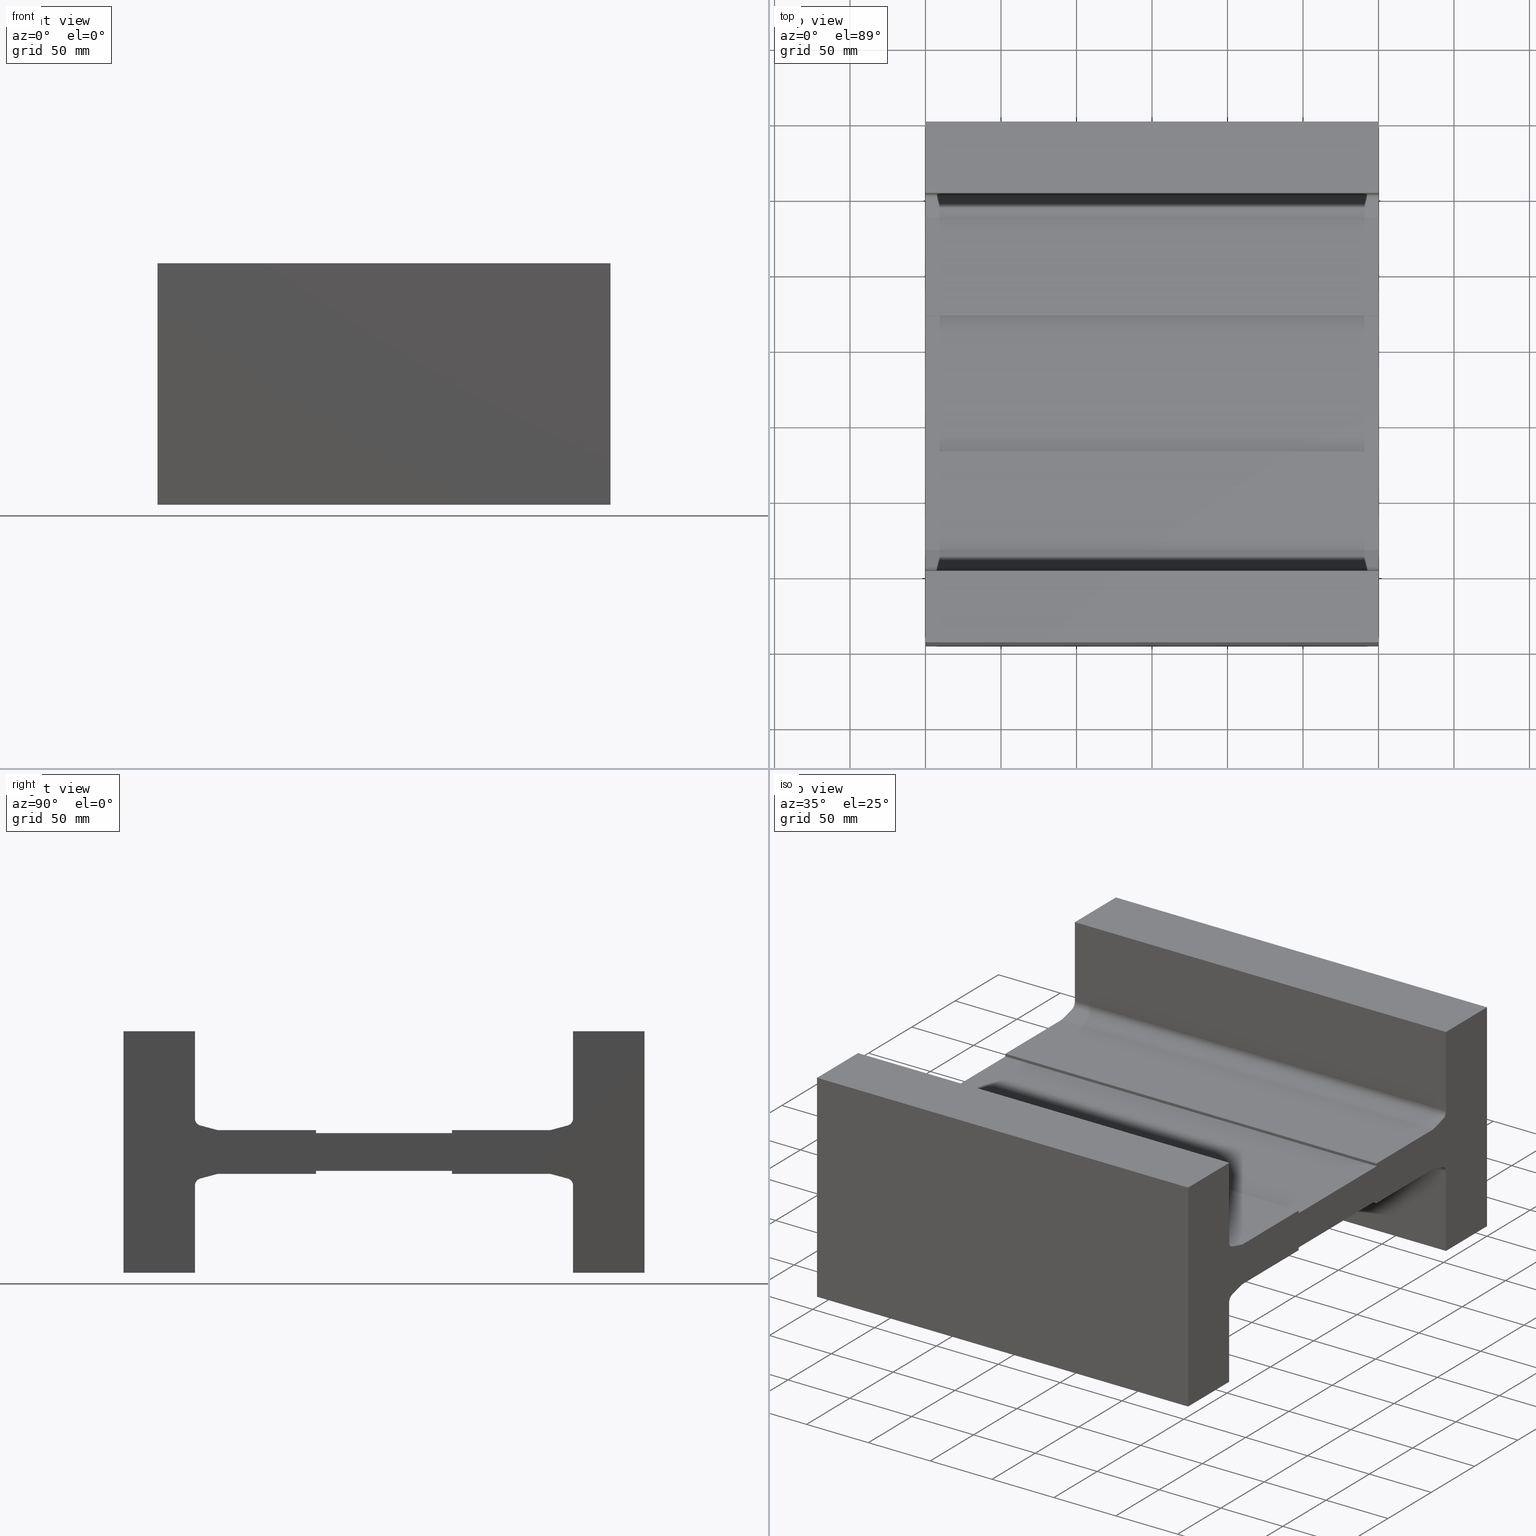
[diagram: canonical four-view strip — front | top / right | iso, engineering-drawing reading convention]
A machine part, canonical four-view strip (front | top / right | iso — engineering-drawing reading convention). The complete STEP part file that produces these views, byte-faithful:
ISO-10303-21;
HEADER;
/* Generated by software containing ST-Developer
 * from STEP Tools, Inc. (www.steptools.com) 
 */

FILE_DESCRIPTION(
/* description */ ('-'),
/* implementation_level */ '2;1');

FILE_NAME(
/* name */ 
'C:\\VAULT_WORKSPACE\\Projekte\\Werksnorm\\Profile\\MP xxx.08\\MP 250\\
ALFATEC_MP 250_0828.stp',
/* time_stamp */ '2022-07-25T12:19:37+02:00',
/* author */ ('hipp'),
/* organization */ (''),
/* preprocessor_version */ 'ST-DEVELOPER v18.1',
/* originating_system */ 'Autodesk Inventor 2020',
/* authorisation */ '');

FILE_SCHEMA (('AUTOMOTIVE_DESIGN { 1 0 10303 214 3 1 1 }'));
ENDSEC;

DATA;
#10=MECHANICAL_DESIGN_GEOMETRIC_PRESENTATION_REPRESENTATION('',(#572,#573,
#574,#575,#576,#577,#578,#579,#580,#581,#582,#583,#584,#585,#586,#587,#588,
#589,#590,#591,#592,#593,#594,#595,#596,#597,#598,#599,#600,#601,#602),
#1019);
#11=SHAPE_REPRESENTATION_RELATIONSHIP('SRR','None',#1026,#12);
#12=ADVANCED_BREP_SHAPE_REPRESENTATION('',(#13),#1018);
#13=MANIFOLD_SOLID_BREP('Volumenk\X\F6rper2',#633);
#14=PLANE('',#659);
#15=PLANE('',#660);
#16=PLANE('',#661);
#17=PLANE('',#662);
#18=PLANE('',#663);
#19=PLANE('',#664);
#20=PLANE('',#665);
#21=PLANE('',#666);
#22=PLANE('',#667);
#23=PLANE('',#671);
#24=PLANE('',#675);
#25=PLANE('',#676);
#26=PLANE('',#677);
#27=PLANE('',#678);
#28=PLANE('',#679);
#29=PLANE('',#680);
#30=PLANE('',#681);
#31=PLANE('',#682);
#32=PLANE('',#683);
#33=PLANE('',#684);
#34=PLANE('',#685);
#35=PLANE('',#686);
#36=PLANE('',#687);
#37=PLANE('',#688);
#38=PLANE('',#689);
#39=PLANE('',#690);
#40=FACE_OUTER_BOUND('',#70,.T.);
#41=FACE_OUTER_BOUND('',#71,.T.);
#42=FACE_OUTER_BOUND('',#72,.T.);
#43=FACE_OUTER_BOUND('',#73,.T.);
#44=FACE_OUTER_BOUND('',#74,.T.);
#45=FACE_OUTER_BOUND('',#75,.T.);
#46=FACE_OUTER_BOUND('',#76,.T.);
#47=FACE_OUTER_BOUND('',#77,.T.);
#48=FACE_OUTER_BOUND('',#78,.T.);
#49=FACE_OUTER_BOUND('',#79,.T.);
#50=FACE_OUTER_BOUND('',#80,.T.);
#51=FACE_OUTER_BOUND('',#81,.T.);
#52=FACE_OUTER_BOUND('',#82,.T.);
#53=FACE_OUTER_BOUND('',#83,.T.);
#54=FACE_OUTER_BOUND('',#84,.T.);
#55=FACE_OUTER_BOUND('',#85,.T.);
#56=FACE_OUTER_BOUND('',#86,.T.);
#57=FACE_OUTER_BOUND('',#87,.T.);
#58=FACE_OUTER_BOUND('',#88,.T.);
#59=FACE_OUTER_BOUND('',#89,.T.);
#60=FACE_OUTER_BOUND('',#90,.T.);
#61=FACE_OUTER_BOUND('',#91,.T.);
#62=FACE_OUTER_BOUND('',#92,.T.);
#63=FACE_OUTER_BOUND('',#93,.T.);
#64=FACE_OUTER_BOUND('',#94,.T.);
#65=FACE_OUTER_BOUND('',#95,.T.);
#66=FACE_OUTER_BOUND('',#96,.T.);
#67=FACE_OUTER_BOUND('',#97,.T.);
#68=FACE_OUTER_BOUND('',#98,.T.);
#69=FACE_OUTER_BOUND('',#99,.T.);
#70=EDGE_LOOP('',(#400,#401,#402,#403));
#71=EDGE_LOOP('',(#404,#405,#406,#407));
#72=EDGE_LOOP('',(#408,#409,#410,#411));
#73=EDGE_LOOP('',(#412,#413,#414,#415));
#74=EDGE_LOOP('',(#416,#417,#418,#419));
#75=EDGE_LOOP('',(#420,#421,#422,#423));
#76=EDGE_LOOP('',(#424,#425,#426,#427));
#77=EDGE_LOOP('',(#428,#429,#430,#431));
#78=EDGE_LOOP('',(#432,#433,#434,#435));
#79=EDGE_LOOP('',(#436,#437,#438,#439));
#80=EDGE_LOOP('',(#440,#441,#442,#443));
#81=EDGE_LOOP('',(#444,#445,#446,#447));
#82=EDGE_LOOP('',(#448,#449,#450,#451));
#83=EDGE_LOOP('',(#452,#453,#454,#455));
#84=EDGE_LOOP('',(#456,#457,#458,#459));
#85=EDGE_LOOP('',(#460,#461,#462,#463,#464,#465,#466,#467,#468,#469,#470,
#471,#472,#473,#474,#475,#476,#477,#478,#479,#480,#481,#482,#483,#484,#485,
#486,#487));
#86=EDGE_LOOP('',(#488,#489,#490,#491));
#87=EDGE_LOOP('',(#492,#493,#494,#495));
#88=EDGE_LOOP('',(#496,#497,#498,#499));
#89=EDGE_LOOP('',(#500,#501,#502,#503));
#90=EDGE_LOOP('',(#504,#505,#506,#507));
#91=EDGE_LOOP('',(#508,#509,#510,#511));
#92=EDGE_LOOP('',(#512,#513,#514,#515));
#93=EDGE_LOOP('',(#516,#517,#518,#519));
#94=EDGE_LOOP('',(#520,#521,#522,#523));
#95=EDGE_LOOP('',(#524,#525,#526,#527));
#96=EDGE_LOOP('',(#528,#529,#530,#531));
#97=EDGE_LOOP('',(#532,#533,#534,#535));
#98=EDGE_LOOP('',(#536,#537,#538,#539));
#99=EDGE_LOOP('',(#540,#541,#542,#543,#544,#545,#546,#547,#548,#549,#550,
#551,#552,#553,#554,#555,#556,#557,#558,#559,#560,#561,#562,#563,#564,#565,
#566,#567));
#100=LINE('',#851,#176);
#101=LINE('',#854,#177);
#102=LINE('',#860,#178);
#103=LINE('',#863,#179);
#104=LINE('',#866,#180);
#105=LINE('',#868,#181);
#106=LINE('',#869,#182);
#107=LINE('',#872,#183);
#108=LINE('',#874,#184);
#109=LINE('',#875,#185);
#110=LINE('',#878,#186);
#111=LINE('',#880,#187);
#112=LINE('',#881,#188);
#113=LINE('',#884,#189);
#114=LINE('',#886,#190);
#115=LINE('',#887,#191);
#116=LINE('',#889,#192);
#117=LINE('',#890,#193);
#118=LINE('',#894,#194);
#119=LINE('',#896,#195);
#120=LINE('',#898,#196);
#121=LINE('',#899,#197);
#122=LINE('',#902,#198);
#123=LINE('',#904,#199);
#124=LINE('',#905,#200);
#125=LINE('',#908,#201);
#126=LINE('',#910,#202);
#127=LINE('',#911,#203);
#128=LINE('',#915,#204);
#129=LINE('',#916,#205);
#130=LINE('',#917,#206);
#131=LINE('',#922,#207);
#132=LINE('',#927,#208);
#133=LINE('',#928,#209);
#134=LINE('',#929,#210);
#135=LINE('',#935,#211);
#136=LINE('',#938,#212);
#137=LINE('',#940,#213);
#138=LINE('',#941,#214);
#139=LINE('',#944,#215);
#140=LINE('',#946,#216);
#141=LINE('',#948,#217);
#142=LINE('',#950,#218);
#143=LINE('',#952,#219);
#144=LINE('',#954,#220);
#145=LINE('',#955,#221);
#146=LINE('',#957,#222);
#147=LINE('',#959,#223);
#148=LINE('',#961,#224);
#149=LINE('',#963,#225);
#150=LINE('',#965,#226);
#151=LINE('',#966,#227);
#152=LINE('',#969,#228);
#153=LINE('',#970,#229);
#154=LINE('',#973,#230);
#155=LINE('',#974,#231);
#156=LINE('',#977,#232);
#157=LINE('',#978,#233);
#158=LINE('',#981,#234);
#159=LINE('',#982,#235);
#160=LINE('',#985,#236);
#161=LINE('',#986,#237);
#162=LINE('',#989,#238);
#163=LINE('',#990,#239);
#164=LINE('',#993,#240);
#165=LINE('',#994,#241);
#166=LINE('',#996,#242);
#167=LINE('',#999,#243);
#168=LINE('',#1000,#244);
#169=LINE('',#1003,#245);
#170=LINE('',#1004,#246);
#171=LINE('',#1007,#247);
#172=LINE('',#1008,#248);
#173=LINE('',#1011,#249);
#174=LINE('',#1012,#250);
#175=LINE('',#1014,#251);
#176=VECTOR('',#697,10.);
#177=VECTOR('',#700,10.);
#178=VECTOR('',#705,10.);
#179=VECTOR('',#708,10.);
#180=VECTOR('',#711,10.);
#181=VECTOR('',#712,10.);
#182=VECTOR('',#713,10.);
#183=VECTOR('',#716,10.);
#184=VECTOR('',#717,10.);
#185=VECTOR('',#718,10.);
#186=VECTOR('',#721,10.);
#187=VECTOR('',#722,10.);
#188=VECTOR('',#723,10.);
#189=VECTOR('',#726,10.);
#190=VECTOR('',#727,10.);
#191=VECTOR('',#728,10.);
#192=VECTOR('',#731,10.);
#193=VECTOR('',#732,10.);
#194=VECTOR('',#735,10.);
#195=VECTOR('',#736,10.);
#196=VECTOR('',#737,10.);
#197=VECTOR('',#738,10.);
#198=VECTOR('',#741,10.);
#199=VECTOR('',#742,10.);
#200=VECTOR('',#743,10.);
#201=VECTOR('',#746,10.);
#202=VECTOR('',#747,10.);
#203=VECTOR('',#748,10.);
#204=VECTOR('',#751,10.);
#205=VECTOR('',#752,10.);
#206=VECTOR('',#753,10.);
#207=VECTOR('',#758,10.);
#208=VECTOR('',#763,10.);
#209=VECTOR('',#764,10.);
#210=VECTOR('',#765,10.);
#211=VECTOR('',#772,10.);
#212=VECTOR('',#775,10.);
#213=VECTOR('',#776,10.);
#214=VECTOR('',#777,10.);
#215=VECTOR('',#780,10.);
#216=VECTOR('',#781,10.);
#217=VECTOR('',#782,10.);
#218=VECTOR('',#783,10.);
#219=VECTOR('',#784,10.);
#220=VECTOR('',#785,10.);
#221=VECTOR('',#786,10.);
#222=VECTOR('',#787,10.);
#223=VECTOR('',#788,10.);
#224=VECTOR('',#789,10.);
#225=VECTOR('',#790,10.);
#226=VECTOR('',#791,10.);
#227=VECTOR('',#792,10.);
#228=VECTOR('',#795,10.);
#229=VECTOR('',#796,10.);
#230=VECTOR('',#799,10.);
#231=VECTOR('',#800,10.);
#232=VECTOR('',#803,10.);
#233=VECTOR('',#804,10.);
#234=VECTOR('',#807,10.);
#235=VECTOR('',#808,10.);
#236=VECTOR('',#811,10.);
#237=VECTOR('',#812,10.);
#238=VECTOR('',#815,10.);
#239=VECTOR('',#816,10.);
#240=VECTOR('',#819,10.);
#241=VECTOR('',#820,10.);
#242=VECTOR('',#823,10.);
#243=VECTOR('',#826,10.);
#244=VECTOR('',#827,10.);
#245=VECTOR('',#830,10.);
#246=VECTOR('',#831,10.);
#247=VECTOR('',#834,10.);
#248=VECTOR('',#835,10.);
#249=VECTOR('',#838,10.);
#250=VECTOR('',#839,10.);
#251=VECTOR('',#842,10.);
#252=CIRCLE('',#654,4.8);
#253=CIRCLE('',#655,4.8);
#254=CIRCLE('',#657,4.8);
#255=CIRCLE('',#658,4.8);
#256=CIRCLE('',#669,4.8);
#257=CIRCLE('',#670,4.8);
#258=CIRCLE('',#673,4.8);
#259=CIRCLE('',#674,4.8);
#260=VERTEX_POINT('',#847);
#261=VERTEX_POINT('',#848);
#262=VERTEX_POINT('',#850);
#263=VERTEX_POINT('',#852);
#264=VERTEX_POINT('',#856);
#265=VERTEX_POINT('',#857);
#266=VERTEX_POINT('',#859);
#267=VERTEX_POINT('',#861);
#268=VERTEX_POINT('',#865);
#269=VERTEX_POINT('',#867);
#270=VERTEX_POINT('',#871);
#271=VERTEX_POINT('',#873);
#272=VERTEX_POINT('',#877);
#273=VERTEX_POINT('',#879);
#274=VERTEX_POINT('',#883);
#275=VERTEX_POINT('',#885);
#276=VERTEX_POINT('',#892);
#277=VERTEX_POINT('',#893);
#278=VERTEX_POINT('',#895);
#279=VERTEX_POINT('',#897);
#280=VERTEX_POINT('',#901);
#281=VERTEX_POINT('',#903);
#282=VERTEX_POINT('',#907);
#283=VERTEX_POINT('',#909);
#284=VERTEX_POINT('',#913);
#285=VERTEX_POINT('',#914);
#286=VERTEX_POINT('',#919);
#287=VERTEX_POINT('',#921);
#288=VERTEX_POINT('',#925);
#289=VERTEX_POINT('',#926);
#290=VERTEX_POINT('',#931);
#291=VERTEX_POINT('',#933);
#292=VERTEX_POINT('',#937);
#293=VERTEX_POINT('',#939);
#294=VERTEX_POINT('',#943);
#295=VERTEX_POINT('',#945);
#296=VERTEX_POINT('',#947);
#297=VERTEX_POINT('',#949);
#298=VERTEX_POINT('',#951);
#299=VERTEX_POINT('',#953);
#300=VERTEX_POINT('',#956);
#301=VERTEX_POINT('',#958);
#302=VERTEX_POINT('',#960);
#303=VERTEX_POINT('',#962);
#304=VERTEX_POINT('',#964);
#305=VERTEX_POINT('',#968);
#306=VERTEX_POINT('',#972);
#307=VERTEX_POINT('',#976);
#308=VERTEX_POINT('',#980);
#309=VERTEX_POINT('',#984);
#310=VERTEX_POINT('',#988);
#311=VERTEX_POINT('',#992);
#312=VERTEX_POINT('',#998);
#313=VERTEX_POINT('',#1002);
#314=VERTEX_POINT('',#1006);
#315=VERTEX_POINT('',#1010);
#316=EDGE_CURVE('',#260,#261,#252,.T.);
#317=EDGE_CURVE('',#261,#262,#100,.T.);
#318=EDGE_CURVE('',#262,#263,#253,.T.);
#319=EDGE_CURVE('',#263,#260,#101,.T.);
#320=EDGE_CURVE('',#264,#265,#254,.T.);
#321=EDGE_CURVE('',#265,#266,#102,.T.);
#322=EDGE_CURVE('',#266,#267,#255,.T.);
#323=EDGE_CURVE('',#267,#264,#103,.T.);
#324=EDGE_CURVE('',#268,#265,#104,.T.);
#325=EDGE_CURVE('',#268,#269,#105,.T.);
#326=EDGE_CURVE('',#269,#266,#106,.T.);
#327=EDGE_CURVE('',#270,#269,#107,.T.);
#328=EDGE_CURVE('',#271,#268,#108,.T.);
#329=EDGE_CURVE('',#271,#270,#109,.T.);
#330=EDGE_CURVE('',#263,#272,#110,.T.);
#331=EDGE_CURVE('',#273,#272,#111,.T.);
#332=EDGE_CURVE('',#260,#273,#112,.T.);
#333=EDGE_CURVE('',#272,#274,#113,.T.);
#334=EDGE_CURVE('',#275,#274,#114,.T.);
#335=EDGE_CURVE('',#273,#275,#115,.T.);
#336=EDGE_CURVE('',#274,#270,#116,.T.);
#337=EDGE_CURVE('',#275,#271,#117,.T.);
#338=EDGE_CURVE('',#276,#277,#118,.T.);
#339=EDGE_CURVE('',#278,#277,#119,.T.);
#340=EDGE_CURVE('',#279,#278,#120,.T.);
#341=EDGE_CURVE('',#279,#276,#121,.T.);
#342=EDGE_CURVE('',#280,#276,#122,.T.);
#343=EDGE_CURVE('',#281,#279,#123,.T.);
#344=EDGE_CURVE('',#281,#280,#124,.T.);
#345=EDGE_CURVE('',#282,#280,#125,.T.);
#346=EDGE_CURVE('',#283,#281,#126,.T.);
#347=EDGE_CURVE('',#283,#282,#127,.T.);
#348=EDGE_CURVE('',#284,#285,#128,.T.);
#349=EDGE_CURVE('',#284,#282,#129,.T.);
#350=EDGE_CURVE('',#285,#283,#130,.T.);
#351=EDGE_CURVE('',#285,#286,#256,.T.);
#352=EDGE_CURVE('',#286,#287,#131,.T.);
#353=EDGE_CURVE('',#287,#284,#257,.T.);
#354=EDGE_CURVE('',#288,#289,#132,.T.);
#355=EDGE_CURVE('',#278,#288,#133,.T.);
#356=EDGE_CURVE('',#277,#289,#134,.T.);
#357=EDGE_CURVE('',#290,#288,#258,.T.);
#358=EDGE_CURVE('',#289,#291,#259,.T.);
#359=EDGE_CURVE('',#291,#290,#135,.T.);
#360=EDGE_CURVE('',#292,#261,#136,.T.);
#361=EDGE_CURVE('',#292,#293,#137,.T.);
#362=EDGE_CURVE('',#293,#262,#138,.T.);
#363=EDGE_CURVE('',#264,#294,#139,.T.);
#364=EDGE_CURVE('',#294,#295,#140,.T.);
#365=EDGE_CURVE('',#295,#296,#141,.T.);
#366=EDGE_CURVE('',#296,#297,#142,.T.);
#367=EDGE_CURVE('',#297,#298,#143,.T.);
#368=EDGE_CURVE('',#298,#299,#144,.T.);
#369=EDGE_CURVE('',#299,#286,#145,.T.);
#370=EDGE_CURVE('',#290,#300,#146,.T.);
#371=EDGE_CURVE('',#300,#301,#147,.T.);
#372=EDGE_CURVE('',#301,#302,#148,.T.);
#373=EDGE_CURVE('',#302,#303,#149,.T.);
#374=EDGE_CURVE('',#303,#304,#150,.T.);
#375=EDGE_CURVE('',#304,#292,#151,.T.);
#376=EDGE_CURVE('',#291,#305,#152,.T.);
#377=EDGE_CURVE('',#300,#305,#153,.T.);
#378=EDGE_CURVE('',#299,#306,#154,.T.);
#379=EDGE_CURVE('',#306,#287,#155,.T.);
#380=EDGE_CURVE('',#267,#307,#156,.T.);
#381=EDGE_CURVE('',#294,#307,#157,.T.);
#382=EDGE_CURVE('',#307,#308,#158,.T.);
#383=EDGE_CURVE('',#295,#308,#159,.T.);
#384=EDGE_CURVE('',#308,#309,#160,.T.);
#385=EDGE_CURVE('',#296,#309,#161,.T.);
#386=EDGE_CURVE('',#309,#310,#162,.T.);
#387=EDGE_CURVE('',#297,#310,#163,.T.);
#388=EDGE_CURVE('',#310,#311,#164,.T.);
#389=EDGE_CURVE('',#298,#311,#165,.T.);
#390=EDGE_CURVE('',#311,#306,#166,.T.);
#391=EDGE_CURVE('',#305,#312,#167,.T.);
#392=EDGE_CURVE('',#301,#312,#168,.T.);
#393=EDGE_CURVE('',#312,#313,#169,.T.);
#394=EDGE_CURVE('',#302,#313,#170,.T.);
#395=EDGE_CURVE('',#313,#314,#171,.T.);
#396=EDGE_CURVE('',#303,#314,#172,.T.);
#397=EDGE_CURVE('',#314,#315,#173,.T.);
#398=EDGE_CURVE('',#304,#315,#174,.T.);
#399=EDGE_CURVE('',#315,#293,#175,.T.);
#400=ORIENTED_EDGE('',*,*,#316,.T.);
#401=ORIENTED_EDGE('',*,*,#317,.T.);
#402=ORIENTED_EDGE('',*,*,#318,.T.);
#403=ORIENTED_EDGE('',*,*,#319,.T.);
#404=ORIENTED_EDGE('',*,*,#320,.T.);
#405=ORIENTED_EDGE('',*,*,#321,.T.);
#406=ORIENTED_EDGE('',*,*,#322,.T.);
#407=ORIENTED_EDGE('',*,*,#323,.T.);
#408=ORIENTED_EDGE('',*,*,#321,.F.);
#409=ORIENTED_EDGE('',*,*,#324,.F.);
#410=ORIENTED_EDGE('',*,*,#325,.T.);
#411=ORIENTED_EDGE('',*,*,#326,.T.);
#412=ORIENTED_EDGE('',*,*,#327,.T.);
#413=ORIENTED_EDGE('',*,*,#325,.F.);
#414=ORIENTED_EDGE('',*,*,#328,.F.);
#415=ORIENTED_EDGE('',*,*,#329,.T.);
#416=ORIENTED_EDGE('',*,*,#319,.F.);
#417=ORIENTED_EDGE('',*,*,#330,.T.);
#418=ORIENTED_EDGE('',*,*,#331,.F.);
#419=ORIENTED_EDGE('',*,*,#332,.F.);
#420=ORIENTED_EDGE('',*,*,#333,.T.);
#421=ORIENTED_EDGE('',*,*,#334,.F.);
#422=ORIENTED_EDGE('',*,*,#335,.F.);
#423=ORIENTED_EDGE('',*,*,#331,.T.);
#424=ORIENTED_EDGE('',*,*,#336,.T.);
#425=ORIENTED_EDGE('',*,*,#329,.F.);
#426=ORIENTED_EDGE('',*,*,#337,.F.);
#427=ORIENTED_EDGE('',*,*,#334,.T.);
#428=ORIENTED_EDGE('',*,*,#338,.T.);
#429=ORIENTED_EDGE('',*,*,#339,.F.);
#430=ORIENTED_EDGE('',*,*,#340,.F.);
#431=ORIENTED_EDGE('',*,*,#341,.T.);
#432=ORIENTED_EDGE('',*,*,#342,.T.);
#433=ORIENTED_EDGE('',*,*,#341,.F.);
#434=ORIENTED_EDGE('',*,*,#343,.F.);
#435=ORIENTED_EDGE('',*,*,#344,.T.);
#436=ORIENTED_EDGE('',*,*,#345,.T.);
#437=ORIENTED_EDGE('',*,*,#344,.F.);
#438=ORIENTED_EDGE('',*,*,#346,.F.);
#439=ORIENTED_EDGE('',*,*,#347,.T.);
#440=ORIENTED_EDGE('',*,*,#348,.F.);
#441=ORIENTED_EDGE('',*,*,#349,.T.);
#442=ORIENTED_EDGE('',*,*,#347,.F.);
#443=ORIENTED_EDGE('',*,*,#350,.F.);
#444=ORIENTED_EDGE('',*,*,#351,.T.);
#445=ORIENTED_EDGE('',*,*,#352,.T.);
#446=ORIENTED_EDGE('',*,*,#353,.T.);
#447=ORIENTED_EDGE('',*,*,#348,.T.);
#448=ORIENTED_EDGE('',*,*,#354,.F.);
#449=ORIENTED_EDGE('',*,*,#355,.F.);
#450=ORIENTED_EDGE('',*,*,#339,.T.);
#451=ORIENTED_EDGE('',*,*,#356,.T.);
#452=ORIENTED_EDGE('',*,*,#357,.T.);
#453=ORIENTED_EDGE('',*,*,#354,.T.);
#454=ORIENTED_EDGE('',*,*,#358,.T.);
#455=ORIENTED_EDGE('',*,*,#359,.T.);
#456=ORIENTED_EDGE('',*,*,#360,.F.);
#457=ORIENTED_EDGE('',*,*,#361,.T.);
#458=ORIENTED_EDGE('',*,*,#362,.T.);
#459=ORIENTED_EDGE('',*,*,#317,.F.);
#460=ORIENTED_EDGE('',*,*,#360,.T.);
#461=ORIENTED_EDGE('',*,*,#316,.F.);
#462=ORIENTED_EDGE('',*,*,#332,.T.);
#463=ORIENTED_EDGE('',*,*,#335,.T.);
#464=ORIENTED_EDGE('',*,*,#337,.T.);
#465=ORIENTED_EDGE('',*,*,#328,.T.);
#466=ORIENTED_EDGE('',*,*,#324,.T.);
#467=ORIENTED_EDGE('',*,*,#320,.F.);
#468=ORIENTED_EDGE('',*,*,#363,.T.);
#469=ORIENTED_EDGE('',*,*,#364,.T.);
#470=ORIENTED_EDGE('',*,*,#365,.T.);
#471=ORIENTED_EDGE('',*,*,#366,.T.);
#472=ORIENTED_EDGE('',*,*,#367,.T.);
#473=ORIENTED_EDGE('',*,*,#368,.T.);
#474=ORIENTED_EDGE('',*,*,#369,.T.);
#475=ORIENTED_EDGE('',*,*,#351,.F.);
#476=ORIENTED_EDGE('',*,*,#350,.T.);
#477=ORIENTED_EDGE('',*,*,#346,.T.);
#478=ORIENTED_EDGE('',*,*,#343,.T.);
#479=ORIENTED_EDGE('',*,*,#340,.T.);
#480=ORIENTED_EDGE('',*,*,#355,.T.);
#481=ORIENTED_EDGE('',*,*,#357,.F.);
#482=ORIENTED_EDGE('',*,*,#370,.T.);
#483=ORIENTED_EDGE('',*,*,#371,.T.);
#484=ORIENTED_EDGE('',*,*,#372,.T.);
#485=ORIENTED_EDGE('',*,*,#373,.T.);
#486=ORIENTED_EDGE('',*,*,#374,.T.);
#487=ORIENTED_EDGE('',*,*,#375,.T.);
#488=ORIENTED_EDGE('',*,*,#376,.T.);
#489=ORIENTED_EDGE('',*,*,#377,.F.);
#490=ORIENTED_EDGE('',*,*,#370,.F.);
#491=ORIENTED_EDGE('',*,*,#359,.F.);
#492=ORIENTED_EDGE('',*,*,#369,.F.);
#493=ORIENTED_EDGE('',*,*,#378,.T.);
#494=ORIENTED_EDGE('',*,*,#379,.T.);
#495=ORIENTED_EDGE('',*,*,#352,.F.);
#496=ORIENTED_EDGE('',*,*,#380,.T.);
#497=ORIENTED_EDGE('',*,*,#381,.F.);
#498=ORIENTED_EDGE('',*,*,#363,.F.);
#499=ORIENTED_EDGE('',*,*,#323,.F.);
#500=ORIENTED_EDGE('',*,*,#382,.T.);
#501=ORIENTED_EDGE('',*,*,#383,.F.);
#502=ORIENTED_EDGE('',*,*,#364,.F.);
#503=ORIENTED_EDGE('',*,*,#381,.T.);
#504=ORIENTED_EDGE('',*,*,#384,.T.);
#505=ORIENTED_EDGE('',*,*,#385,.F.);
#506=ORIENTED_EDGE('',*,*,#365,.F.);
#507=ORIENTED_EDGE('',*,*,#383,.T.);
#508=ORIENTED_EDGE('',*,*,#386,.T.);
#509=ORIENTED_EDGE('',*,*,#387,.F.);
#510=ORIENTED_EDGE('',*,*,#366,.F.);
#511=ORIENTED_EDGE('',*,*,#385,.T.);
#512=ORIENTED_EDGE('',*,*,#388,.T.);
#513=ORIENTED_EDGE('',*,*,#389,.F.);
#514=ORIENTED_EDGE('',*,*,#367,.F.);
#515=ORIENTED_EDGE('',*,*,#387,.T.);
#516=ORIENTED_EDGE('',*,*,#390,.T.);
#517=ORIENTED_EDGE('',*,*,#378,.F.);
#518=ORIENTED_EDGE('',*,*,#368,.F.);
#519=ORIENTED_EDGE('',*,*,#389,.T.);
#520=ORIENTED_EDGE('',*,*,#391,.T.);
#521=ORIENTED_EDGE('',*,*,#392,.F.);
#522=ORIENTED_EDGE('',*,*,#371,.F.);
#523=ORIENTED_EDGE('',*,*,#377,.T.);
#524=ORIENTED_EDGE('',*,*,#393,.T.);
#525=ORIENTED_EDGE('',*,*,#394,.F.);
#526=ORIENTED_EDGE('',*,*,#372,.F.);
#527=ORIENTED_EDGE('',*,*,#392,.T.);
#528=ORIENTED_EDGE('',*,*,#395,.T.);
#529=ORIENTED_EDGE('',*,*,#396,.F.);
#530=ORIENTED_EDGE('',*,*,#373,.F.);
#531=ORIENTED_EDGE('',*,*,#394,.T.);
#532=ORIENTED_EDGE('',*,*,#397,.T.);
#533=ORIENTED_EDGE('',*,*,#398,.F.);
#534=ORIENTED_EDGE('',*,*,#374,.F.);
#535=ORIENTED_EDGE('',*,*,#396,.T.);
#536=ORIENTED_EDGE('',*,*,#399,.T.);
#537=ORIENTED_EDGE('',*,*,#361,.F.);
#538=ORIENTED_EDGE('',*,*,#375,.F.);
#539=ORIENTED_EDGE('',*,*,#398,.T.);
#540=ORIENTED_EDGE('',*,*,#362,.F.);
#541=ORIENTED_EDGE('',*,*,#399,.F.);
#542=ORIENTED_EDGE('',*,*,#397,.F.);
#543=ORIENTED_EDGE('',*,*,#395,.F.);
#544=ORIENTED_EDGE('',*,*,#393,.F.);
#545=ORIENTED_EDGE('',*,*,#391,.F.);
#546=ORIENTED_EDGE('',*,*,#376,.F.);
#547=ORIENTED_EDGE('',*,*,#358,.F.);
#548=ORIENTED_EDGE('',*,*,#356,.F.);
#549=ORIENTED_EDGE('',*,*,#338,.F.);
#550=ORIENTED_EDGE('',*,*,#342,.F.);
#551=ORIENTED_EDGE('',*,*,#345,.F.);
#552=ORIENTED_EDGE('',*,*,#349,.F.);
#553=ORIENTED_EDGE('',*,*,#353,.F.);
#554=ORIENTED_EDGE('',*,*,#379,.F.);
#555=ORIENTED_EDGE('',*,*,#390,.F.);
#556=ORIENTED_EDGE('',*,*,#388,.F.);
#557=ORIENTED_EDGE('',*,*,#386,.F.);
#558=ORIENTED_EDGE('',*,*,#384,.F.);
#559=ORIENTED_EDGE('',*,*,#382,.F.);
#560=ORIENTED_EDGE('',*,*,#380,.F.);
#561=ORIENTED_EDGE('',*,*,#322,.F.);
#562=ORIENTED_EDGE('',*,*,#326,.F.);
#563=ORIENTED_EDGE('',*,*,#327,.F.);
#564=ORIENTED_EDGE('',*,*,#336,.F.);
#565=ORIENTED_EDGE('',*,*,#333,.F.);
#566=ORIENTED_EDGE('',*,*,#330,.F.);
#567=ORIENTED_EDGE('',*,*,#318,.F.);
#568=CYLINDRICAL_SURFACE('',#653,4.8);
#569=CYLINDRICAL_SURFACE('',#656,4.8);
#570=CYLINDRICAL_SURFACE('',#668,4.8);
#571=CYLINDRICAL_SURFACE('',#672,4.8);
#572=STYLED_ITEM('',(#1036),#603);
#573=STYLED_ITEM('',(#1036),#604);
#574=STYLED_ITEM('',(#1036),#605);
#575=STYLED_ITEM('',(#1036),#606);
#576=STYLED_ITEM('',(#1036),#607);
#577=STYLED_ITEM('',(#1036),#608);
#578=STYLED_ITEM('',(#1036),#609);
#579=STYLED_ITEM('',(#1036),#610);
#580=STYLED_ITEM('',(#1036),#611);
#581=STYLED_ITEM('',(#1036),#612);
#582=STYLED_ITEM('',(#1036),#613);
#583=STYLED_ITEM('',(#1036),#614);
#584=STYLED_ITEM('',(#1036),#615);
#585=STYLED_ITEM('',(#1036),#616);
#586=STYLED_ITEM('',(#1036),#617);
#587=STYLED_ITEM('',(#1036),#618);
#588=STYLED_ITEM('',(#1036),#619);
#589=STYLED_ITEM('',(#1036),#620);
#590=STYLED_ITEM('',(#1036),#621);
#591=STYLED_ITEM('',(#1036),#622);
#592=STYLED_ITEM('',(#1036),#623);
#593=STYLED_ITEM('',(#1036),#624);
#594=STYLED_ITEM('',(#1036),#625);
#595=STYLED_ITEM('',(#1036),#626);
#596=STYLED_ITEM('',(#1036),#627);
#597=STYLED_ITEM('',(#1036),#628);
#598=STYLED_ITEM('',(#1036),#629);
#599=STYLED_ITEM('',(#1036),#630);
#600=STYLED_ITEM('',(#1036),#631);
#601=STYLED_ITEM('',(#1036),#632);
#602=STYLED_ITEM('',(#1035),#13);
#603=ADVANCED_FACE('',(#40),#568,.F.);
#604=ADVANCED_FACE('',(#41),#569,.F.);
#605=ADVANCED_FACE('',(#42),#14,.T.);
#606=ADVANCED_FACE('',(#43),#15,.T.);
#607=ADVANCED_FACE('',(#44),#16,.T.);
#608=ADVANCED_FACE('',(#45),#17,.T.);
#609=ADVANCED_FACE('',(#46),#18,.T.);
#610=ADVANCED_FACE('',(#47),#19,.T.);
#611=ADVANCED_FACE('',(#48),#20,.T.);
#612=ADVANCED_FACE('',(#49),#21,.T.);
#613=ADVANCED_FACE('',(#50),#22,.T.);
#614=ADVANCED_FACE('',(#51),#570,.F.);
#615=ADVANCED_FACE('',(#52),#23,.T.);
#616=ADVANCED_FACE('',(#53),#571,.F.);
#617=ADVANCED_FACE('',(#54),#24,.T.);
#618=ADVANCED_FACE('',(#55),#25,.F.);
#619=ADVANCED_FACE('',(#56),#26,.T.);
#620=ADVANCED_FACE('',(#57),#27,.T.);
#621=ADVANCED_FACE('',(#58),#28,.T.);
#622=ADVANCED_FACE('',(#59),#29,.T.);
#623=ADVANCED_FACE('',(#60),#30,.T.);
#624=ADVANCED_FACE('',(#61),#31,.T.);
#625=ADVANCED_FACE('',(#62),#32,.T.);
#626=ADVANCED_FACE('',(#63),#33,.T.);
#627=ADVANCED_FACE('',(#64),#34,.T.);
#628=ADVANCED_FACE('',(#65),#35,.T.);
#629=ADVANCED_FACE('',(#66),#36,.T.);
#630=ADVANCED_FACE('',(#67),#37,.T.);
#631=ADVANCED_FACE('',(#68),#38,.T.);
#632=ADVANCED_FACE('',(#69),#39,.T.);
#633=CLOSED_SHELL('',(#603,#604,#605,#606,#607,#608,#609,#610,#611,#612,
#613,#614,#615,#616,#617,#618,#619,#620,#621,#622,#623,#624,#625,#626,#627,
#628,#629,#630,#631,#632));
#634=DERIVED_UNIT_ELEMENT(#636,1.);
#635=DERIVED_UNIT_ELEMENT(#1021,3.);
#636=(
MASS_UNIT()
NAMED_UNIT(*)
SI_UNIT($,.GRAM.)
);
#637=DERIVED_UNIT((#634,#635));
#638=MEASURE_REPRESENTATION_ITEM('density measure',
POSITIVE_RATIO_MEASURE(7.86),#637);
#639=PROPERTY_DEFINITION_REPRESENTATION(#644,#641);
#640=PROPERTY_DEFINITION_REPRESENTATION(#645,#642);
#641=REPRESENTATION('material name',(#643),#1018);
#642=REPRESENTATION('density',(#638),#1018);
#643=DESCRIPTIVE_REPRESENTATION_ITEM('S235JR','S235JR');
#644=PROPERTY_DEFINITION('material property','material name',#1028);
#645=PROPERTY_DEFINITION('material property','density of part',#1028);
#646=DATE_TIME_ROLE('creation_date');
#647=APPLIED_DATE_AND_TIME_ASSIGNMENT(#648,#646,(#1028));
#648=DATE_AND_TIME(#649,#650);
#649=CALENDAR_DATE(2022,25,7);
#650=LOCAL_TIME(10,18,55.,#651);
#651=COORDINATED_UNIVERSAL_TIME_OFFSET(0,0,.BEHIND.);
#652=AXIS2_PLACEMENT_3D('placement',#845,#691,#692);
#653=AXIS2_PLACEMENT_3D('',#846,#693,#694);
#654=AXIS2_PLACEMENT_3D('',#849,#695,#696);
#655=AXIS2_PLACEMENT_3D('',#853,#698,#699);
#656=AXIS2_PLACEMENT_3D('',#855,#701,#702);
#657=AXIS2_PLACEMENT_3D('',#858,#703,#704);
#658=AXIS2_PLACEMENT_3D('',#862,#706,#707);
#659=AXIS2_PLACEMENT_3D('',#864,#709,#710);
#660=AXIS2_PLACEMENT_3D('',#870,#714,#715);
#661=AXIS2_PLACEMENT_3D('',#876,#719,#720);
#662=AXIS2_PLACEMENT_3D('',#882,#724,#725);
#663=AXIS2_PLACEMENT_3D('',#888,#729,#730);
#664=AXIS2_PLACEMENT_3D('',#891,#733,#734);
#665=AXIS2_PLACEMENT_3D('',#900,#739,#740);
#666=AXIS2_PLACEMENT_3D('',#906,#744,#745);
#667=AXIS2_PLACEMENT_3D('',#912,#749,#750);
#668=AXIS2_PLACEMENT_3D('',#918,#754,#755);
#669=AXIS2_PLACEMENT_3D('',#920,#756,#757);
#670=AXIS2_PLACEMENT_3D('',#923,#759,#760);
#671=AXIS2_PLACEMENT_3D('',#924,#761,#762);
#672=AXIS2_PLACEMENT_3D('',#930,#766,#767);
#673=AXIS2_PLACEMENT_3D('',#932,#768,#769);
#674=AXIS2_PLACEMENT_3D('',#934,#770,#771);
#675=AXIS2_PLACEMENT_3D('',#936,#773,#774);
#676=AXIS2_PLACEMENT_3D('',#942,#778,#779);
#677=AXIS2_PLACEMENT_3D('',#967,#793,#794);
#678=AXIS2_PLACEMENT_3D('',#971,#797,#798);
#679=AXIS2_PLACEMENT_3D('',#975,#801,#802);
#680=AXIS2_PLACEMENT_3D('',#979,#805,#806);
#681=AXIS2_PLACEMENT_3D('',#983,#809,#810);
#682=AXIS2_PLACEMENT_3D('',#987,#813,#814);
#683=AXIS2_PLACEMENT_3D('',#991,#817,#818);
#684=AXIS2_PLACEMENT_3D('',#995,#821,#822);
#685=AXIS2_PLACEMENT_3D('',#997,#824,#825);
#686=AXIS2_PLACEMENT_3D('',#1001,#828,#829);
#687=AXIS2_PLACEMENT_3D('',#1005,#832,#833);
#688=AXIS2_PLACEMENT_3D('',#1009,#836,#837);
#689=AXIS2_PLACEMENT_3D('',#1013,#840,#841);
#690=AXIS2_PLACEMENT_3D('',#1015,#843,#844);
#691=DIRECTION('axis',(0.,0.,1.));
#692=DIRECTION('refdir',(1.,0.,0.));
#693=DIRECTION('center_axis',(1.,-1.69176980447317E-15,4.39325214218709E-16));
#694=DIRECTION('ref_axis',(-1.60961547058999E-15,-0.793353340291238,0.608761429008717));
#695=DIRECTION('center_axis',(-1.,1.69176980447317E-15,-4.39325214218709E-16));
#696=DIRECTION('ref_axis',(-1.60961547058999E-15,-0.793353340291238,0.608761429008717));
#697=DIRECTION('',(1.,-1.69176980447317E-15,4.39325214218709E-16));
#698=DIRECTION('center_axis',(1.,-1.69176980447317E-15,4.39325214218709E-16));
#699=DIRECTION('ref_axis',(-1.60961547058999E-15,-0.793353340291238,0.608761429008717));
#700=DIRECTION('',(-1.,1.69176980447317E-15,-4.39325214218709E-16));
#701=DIRECTION('center_axis',(1.,-1.69176980447317E-15,4.39325214218709E-16));
#702=DIRECTION('ref_axis',(-1.0747269801753E-15,-0.793353340291235,-0.608761429008721));
#703=DIRECTION('center_axis',(-1.,1.69176980447317E-15,-4.39325214218709E-16));
#704=DIRECTION('ref_axis',(-1.0747269801753E-15,-0.793353340291235,-0.608761429008721));
#705=DIRECTION('',(1.,-1.69176980447317E-15,4.39325214218709E-16));
#706=DIRECTION('center_axis',(1.,-1.69176980447317E-15,4.39325214218709E-16));
#707=DIRECTION('ref_axis',(-1.0747269801753E-15,-0.793353340291235,-0.608761429008721));
#708=DIRECTION('',(-1.,1.69176980447317E-15,-4.39325214218709E-16));
#709=DIRECTION('center_axis',(1.69176980447317E-15,1.,5.33044313340485E-16));
#710=DIRECTION('ref_axis',(-4.3932521421871E-16,-5.33044313340484E-16,1.));
#711=DIRECTION('',(4.3932521421871E-16,5.33044313340484E-16,-1.));
#712=DIRECTION('',(1.,-1.69176980447317E-15,4.39325214218709E-16));
#713=DIRECTION('',(4.3932521421871E-16,5.33044313340484E-16,-1.));
#714=DIRECTION('center_axis',(-4.39325214218708E-16,4.34895684855376E-16,
1.));
#715=DIRECTION('ref_axis',(1.,-1.69176980447317E-15,4.39325214218709E-16));
#716=DIRECTION('',(1.69176980447317E-15,1.,-4.34895684855375E-16));
#717=DIRECTION('',(1.69176980447317E-15,1.,-4.34895684855375E-16));
#718=DIRECTION('',(1.,-1.69176980447317E-15,4.39325214218709E-16));
#719=DIRECTION('center_axis',(1.69176980447317E-15,1.,-1.20052903058125E-15));
#720=DIRECTION('ref_axis',(-4.39325214218707E-16,1.20052903058125E-15,1.));
#721=DIRECTION('',(4.39325214218707E-16,-1.20052903058125E-15,-1.));
#722=DIRECTION('',(1.,-1.69176980447317E-15,4.39325214218709E-16));
#723=DIRECTION('',(4.39325214218707E-16,-1.20052903058125E-15,-1.));
#724=DIRECTION('center_axis',(4.39325214218708E-16,-6.22671249274007E-16,
-1.));
#725=DIRECTION('ref_axis',(-1.,1.69176980447317E-15,-4.39325214218709E-16));
#726=DIRECTION('',(-1.69176980447317E-15,-1.,6.22671249274006E-16));
#727=DIRECTION('',(1.,-1.69176980447317E-15,4.39325214218709E-16));
#728=DIRECTION('',(-1.69176980447317E-15,-1.,6.22671249274006E-16));
#729=DIRECTION('center_axis',(-1.69176980447317E-15,-1.,-2.65507170426118E-16));
#730=DIRECTION('ref_axis',(4.39325214218709E-16,2.65507170426118E-16,-1.));
#731=DIRECTION('',(-4.39325214218709E-16,-2.65507170426118E-16,1.));
#732=DIRECTION('',(-4.39325214218709E-16,-2.65507170426118E-16,1.));
#733=DIRECTION('center_axis',(4.39325214218707E-16,-9.9822237811127E-16,
-1.));
#734=DIRECTION('ref_axis',(-1.,1.69176980447317E-15,-4.39325214218709E-16));
#735=DIRECTION('',(-1.69176980447317E-15,-1.,9.98222378111269E-16));
#736=DIRECTION('',(1.,-1.69176980447317E-15,4.39325214218709E-16));
#737=DIRECTION('',(-1.69176980447317E-15,-1.,9.98222378111269E-16));
#738=DIRECTION('',(1.,-1.69176980447317E-15,4.39325214218709E-16));
#739=DIRECTION('center_axis',(1.69176980447317E-15,1.,-6.22671249274006E-16));
#740=DIRECTION('ref_axis',(-4.39325214218708E-16,6.22671249274007E-16,1.));
#741=DIRECTION('',(4.39325214218708E-16,-6.22671249274007E-16,-1.));
#742=DIRECTION('',(4.39325214218708E-16,-1.78582039423944E-16,-1.));
#743=DIRECTION('',(1.,-1.69176980447317E-15,4.39325214218709E-16));
#744=DIRECTION('center_axis',(-4.39325214218709E-16,-1.28431008400517E-16,
1.));
#745=DIRECTION('ref_axis',(1.,-1.69176980447317E-15,4.39325214218709E-16));
#746=DIRECTION('',(1.69176980447317E-15,1.,1.28431008400518E-16));
#747=DIRECTION('',(1.69176980447317E-15,1.,1.28431008400518E-16));
#748=DIRECTION('',(1.,-1.69176980447317E-15,4.39325214218709E-16));
#749=DIRECTION('center_axis',(-1.69176980447317E-15,-1.,-5.33044313340491E-16));
#750=DIRECTION('ref_axis',(4.3932521421871E-16,5.3304431334049E-16,-1.));
#751=DIRECTION('',(-1.,1.69176980447317E-15,-4.39325214218709E-16));
#752=DIRECTION('',(-4.3932521421871E-16,-5.3304431334049E-16,1.));
#753=DIRECTION('',(-4.3932521421871E-16,-5.3304431334049E-16,1.));
#754=DIRECTION('center_axis',(1.,-1.69176980447317E-15,4.39325214218709E-16));
#755=DIRECTION('ref_axis',(1.60961547058999E-15,0.793353340291235,-0.60876142900872));
#756=DIRECTION('center_axis',(-1.,1.69176980447317E-15,-4.39325214218709E-16));
#757=DIRECTION('ref_axis',(1.60961547058999E-15,0.793353340291235,-0.60876142900872));
#758=DIRECTION('',(1.,-1.69176980447317E-15,4.39325214218709E-16));
#759=DIRECTION('center_axis',(1.,-1.69176980447317E-15,4.39325214218709E-16));
#760=DIRECTION('ref_axis',(1.60961547058999E-15,0.793353340291235,-0.60876142900872));
#761=DIRECTION('center_axis',(-1.69176980447317E-15,-1.,7.67135694600819E-16));
#762=DIRECTION('ref_axis',(4.39325214218707E-16,-7.67135694600819E-16,-1.));
#763=DIRECTION('',(1.,-1.69176980447317E-15,4.39325214218709E-16));
#764=DIRECTION('',(-4.39325214218707E-16,7.67135694600819E-16,1.));
#765=DIRECTION('',(-4.39325214218707E-16,7.67135694600819E-16,1.));
#766=DIRECTION('center_axis',(1.,-1.69176980447317E-15,4.39325214218709E-16));
#767=DIRECTION('ref_axis',(1.0747269801753E-15,0.793353340291237,0.608761429008718));
#768=DIRECTION('center_axis',(-1.,1.69176980447317E-15,-4.39325214218709E-16));
#769=DIRECTION('ref_axis',(1.0747269801753E-15,0.793353340291237,0.608761429008718));
#770=DIRECTION('center_axis',(1.,-1.69176980447317E-15,4.39325214218709E-16));
#771=DIRECTION('ref_axis',(1.0747269801753E-15,0.793353340291237,0.608761429008718));
#772=DIRECTION('',(-1.,1.69176980447317E-15,-4.39325214218709E-16));
#773=DIRECTION('center_axis',(0.,0.25881904510252,-0.965925826289069));
#774=DIRECTION('ref_axis',(-1.,0.,0.));
#775=DIRECTION('',(-2.44307062173612E-15,-0.965925826289068,-0.25881904510252));
#776=DIRECTION('',(1.,0.,0.));
#777=DIRECTION('',(0.,-0.965925826289069,-0.25881904510252));
#778=DIRECTION('center_axis',(1.,0.,0.));
#779=DIRECTION('ref_axis',(0.,0.,-1.));
#780=DIRECTION('',(0.,0.965925826289069,-0.258819045102519));
#781=DIRECTION('',(0.,1.,8.85453946020064E-16));
#782=DIRECTION('',(0.,0.,-1.));
#783=DIRECTION('',(0.,1.,9.12850042469573E-16));
#784=DIRECTION('',(0.,0.,1.));
#785=DIRECTION('',(0.,1.,1.29412499802932E-15));
#786=DIRECTION('',(0.,0.965925826289068,0.258819045102522));
#787=DIRECTION('',(0.,-0.965925826289068,0.258819045102521));
#788=DIRECTION('',(0.,-1.,6.81118420015434E-16));
#789=DIRECTION('',(0.,0.,1.));
#790=DIRECTION('',(0.,-1.,3.20731096002823E-16));
#791=DIRECTION('',(0.,0.,-1.));
#792=DIRECTION('',(0.,-1.,0.));
#793=DIRECTION('center_axis',(0.,-0.258819045102521,-0.965925826289068));
#794=DIRECTION('ref_axis',(-1.,0.,0.));
#795=DIRECTION('',(0.,-0.965925826289068,0.258819045102521));
#796=DIRECTION('',(1.,0.,0.));
#797=DIRECTION('center_axis',(0.,-0.258819045102522,0.965925826289068));
#798=DIRECTION('ref_axis',(1.,0.,0.));
#799=DIRECTION('',(1.,0.,0.));
#800=DIRECTION('',(2.44307062173613E-15,0.965925826289068,0.258819045102523));
#801=DIRECTION('center_axis',(0.,0.258819045102519,0.965925826289069));
#802=DIRECTION('ref_axis',(1.,0.,0.));
#803=DIRECTION('',(0.,0.965925826289069,-0.258819045102519));
#804=DIRECTION('',(1.,0.,0.));
#805=DIRECTION('center_axis',(0.,-8.85453946020064E-16,1.));
#806=DIRECTION('ref_axis',(1.,0.,0.));
#807=DIRECTION('',(0.,1.,8.85453946020064E-16));
#808=DIRECTION('',(1.,0.,0.));
#809=DIRECTION('center_axis',(0.,1.,0.));
#810=DIRECTION('ref_axis',(0.,0.,1.));
#811=DIRECTION('',(0.,0.,-1.));
#812=DIRECTION('',(1.,0.,0.));
#813=DIRECTION('center_axis',(0.,-9.12850042469573E-16,1.));
#814=DIRECTION('ref_axis',(1.,0.,0.));
#815=DIRECTION('',(0.,1.,9.12850042469573E-16));
#816=DIRECTION('',(1.,0.,0.));
#817=DIRECTION('center_axis',(0.,-1.,0.));
#818=DIRECTION('ref_axis',(0.,0.,-1.));
#819=DIRECTION('',(0.,0.,1.));
#820=DIRECTION('',(1.,0.,0.));
#821=DIRECTION('center_axis',(0.,-1.29412499802932E-15,1.));
#822=DIRECTION('ref_axis',(1.,0.,0.));
#823=DIRECTION('',(0.,1.,1.29412499802932E-15));
#824=DIRECTION('center_axis',(0.,-6.81118420015434E-16,-1.));
#825=DIRECTION('ref_axis',(-1.,0.,0.));
#826=DIRECTION('',(0.,-1.,6.81118420015434E-16));
#827=DIRECTION('',(1.,0.,0.));
#828=DIRECTION('center_axis',(0.,-1.,0.));
#829=DIRECTION('ref_axis',(0.,0.,-1.));
#830=DIRECTION('',(0.,0.,1.));
#831=DIRECTION('',(1.,0.,0.));
#832=DIRECTION('center_axis',(0.,-3.20731096002823E-16,-1.));
#833=DIRECTION('ref_axis',(-1.,0.,0.));
#834=DIRECTION('',(0.,-1.,3.20731096002823E-16));
#835=DIRECTION('',(1.,0.,0.));
#836=DIRECTION('center_axis',(0.,1.,0.));
#837=DIRECTION('ref_axis',(0.,0.,1.));
#838=DIRECTION('',(0.,0.,-1.));
#839=DIRECTION('',(1.,0.,0.));
#840=DIRECTION('center_axis',(0.,0.,-1.));
#841=DIRECTION('ref_axis',(-1.,0.,0.));
#842=DIRECTION('',(0.,-1.,0.));
#843=DIRECTION('center_axis',(1.,0.,0.));
#844=DIRECTION('ref_axis',(0.,0.,-1.));
#845=CARTESIAN_POINT('',(0.,0.,0.));
#846=CARTESIAN_POINT('Origin',(-2.7009011166953E-13,-292.900000000001,-22.2024074287667));
#847=CARTESIAN_POINT('',(-2.78210606731001E-13,-297.700000000001,-22.2024074287667));
#848=CARTESIAN_POINT('',(-2.74228757185758E-13,-294.142331416493,-17.5659634625791));
#849=CARTESIAN_POINT('Origin',(-2.7009011166953E-13,-292.900000000001,-22.2024074287667));
#850=CARTESIAN_POINT('',(300.,-294.142331416494,-17.565963462579));
#851=CARTESIAN_POINT('',(-2.74228757185758E-13,-294.142331416493,-17.5659634625791));
#852=CARTESIAN_POINT('',(300.,-297.700000000002,-22.2024074287665));
#853=CARTESIAN_POINT('Origin',(300.,-292.900000000002,-22.2024074287665));
#854=CARTESIAN_POINT('',(-2.78210606731001E-13,-297.700000000001,-22.2024074287667));
#855=CARTESIAN_POINT('Origin',(-2.89598266469157E-13,-292.900000000001,
22.2024074287645));
#856=CARTESIAN_POINT('',(-2.89663098508068E-13,-294.142331416493,17.565963462577));
#857=CARTESIAN_POINT('',(-2.97718761530628E-13,-297.700000000001,22.2024074287645));
#858=CARTESIAN_POINT('Origin',(-2.89598266469157E-13,-292.900000000001,
22.2024074287645));
#859=CARTESIAN_POINT('',(300.,-297.700000000002,22.2024074287647));
#860=CARTESIAN_POINT('',(-2.97718761530628E-13,-297.700000000001,22.2024074287645));
#861=CARTESIAN_POINT('',(300.,-294.142331416494,17.5659634625771));
#862=CARTESIAN_POINT('Origin',(300.,-292.900000000002,22.2024074287647));
#863=CARTESIAN_POINT('',(-2.89663098508068E-13,-294.142331416493,17.565963462577));
#864=CARTESIAN_POINT('Origin',(-3.23110701268312E-13,-297.700000000001,
79.999999999999));
#865=CARTESIAN_POINT('',(-3.23110701268312E-13,-297.700000000001,79.999999999999));
#866=CARTESIAN_POINT('',(-3.23110701268312E-13,-297.700000000001,79.999999999999));
#867=CARTESIAN_POINT('',(300.,-297.700000000002,79.9999999999991));
#868=CARTESIAN_POINT('',(-3.23110701268312E-13,-297.700000000001,79.999999999999));
#869=CARTESIAN_POINT('',(300.,-297.700000000002,79.9999999999991));
#870=CARTESIAN_POINT('Origin',(-4.03131413019893E-13,-345.000000000001,
79.999999999999));
#871=CARTESIAN_POINT('',(300.,-345.000000000002,79.9999999999991));
#872=CARTESIAN_POINT('',(300.,-345.000000000002,79.9999999999991));
#873=CARTESIAN_POINT('',(-4.03131413019893E-13,-345.000000000001,79.999999999999));
#874=CARTESIAN_POINT('',(-4.03131413019893E-13,-345.000000000001,79.999999999999));
#875=CARTESIAN_POINT('',(-4.03131413019893E-13,-345.000000000001,79.999999999999));
#876=CARTESIAN_POINT('Origin',(-2.79828715979176E-13,-297.700000000001,
-18.5192378864677));
#877=CARTESIAN_POINT('',(300.,-297.700000000002,-80.000000000001));
#878=CARTESIAN_POINT('',(300.,-297.700000000002,-18.5192378864675));
#879=CARTESIAN_POINT('',(-2.52818666993318E-13,-297.700000000001,-80.0000000000011));
#880=CARTESIAN_POINT('',(-2.52818666993318E-13,-297.700000000001,-80.0000000000011));
#881=CARTESIAN_POINT('',(-2.79828715979176E-13,-297.700000000001,-18.5192378864677));
#882=CARTESIAN_POINT('Origin',(-2.52818666993318E-13,-297.700000000001,
-80.0000000000011));
#883=CARTESIAN_POINT('',(300.,-345.000000000002,-80.000000000001));
#884=CARTESIAN_POINT('',(300.,-297.700000000002,-80.000000000001));
#885=CARTESIAN_POINT('',(-3.32839378744899E-13,-345.000000000001,-80.0000000000011));
#886=CARTESIAN_POINT('',(-3.32839378744899E-13,-345.000000000001,-80.0000000000011));
#887=CARTESIAN_POINT('',(-2.52818666993318E-13,-297.700000000001,-80.0000000000011));
#888=CARTESIAN_POINT('Origin',(-3.67985395882396E-13,-345.000000000001,
-1.04431010680347E-12));
#889=CARTESIAN_POINT('',(300.,-345.000000000002,-9.12512542537861E-13));
#890=CARTESIAN_POINT('',(-3.67985395882396E-13,-345.000000000001,-1.04431010680347E-12));
#891=CARTESIAN_POINT('Origin',(2.50821203798346E-13,-1.15216618967797E-12,
-80.0000000000011));
#892=CARTESIAN_POINT('',(300.,-1.65969713101992E-12,-80.000000000001));
#893=CARTESIAN_POINT('',(300.,-47.3000000000016,-80.0000000000009));
#894=CARTESIAN_POINT('',(300.,-1.65969713101992E-12,-80.000000000001));
#895=CARTESIAN_POINT('',(1.70800492046765E-13,-47.3000000000011,-80.0000000000011));
#896=CARTESIAN_POINT('',(1.70800492046765E-13,-47.3000000000011,-80.0000000000011));
#897=CARTESIAN_POINT('',(2.50821203798346E-13,-1.15216618967797E-12,-80.0000000000011));
#898=CARTESIAN_POINT('',(2.50821203798346E-13,-1.15216618967797E-12,-80.0000000000011));
#899=CARTESIAN_POINT('',(2.50821203798346E-13,-1.15216618967797E-12,-80.0000000000011));
#900=CARTESIAN_POINT('Origin',(2.15675186660849E-13,-1.10235248973605E-12,
-1.15699116953749E-12));
#901=CARTESIAN_POINT('',(300.,-1.59559686792409E-12,79.9999999999989));
#902=CARTESIAN_POINT('',(300.,-1.609883431078E-12,-1.02519360527188E-12));
#903=CARTESIAN_POINT('',(1.80529169523353E-13,-1.08806592658213E-12,79.9999999999988));
#904=CARTESIAN_POINT('',(1.80529169523353E-13,-1.08806592658213E-12,79.9999999999988));
#905=CARTESIAN_POINT('',(1.80529169523353E-13,-1.08806592658213E-12,79.9999999999988));
#906=CARTESIAN_POINT('Origin',(1.00508457771771E-13,-47.3000000000011,79.9999999999988));
#907=CARTESIAN_POINT('',(300.,-47.3000000000016,79.9999999999989));
#908=CARTESIAN_POINT('',(300.,-47.3000000000016,79.9999999999989));
#909=CARTESIAN_POINT('',(1.00508457771771E-13,-47.3000000000011,79.9999999999988));
#910=CARTESIAN_POINT('',(1.00508457771771E-13,-47.3000000000011,79.9999999999988));
#911=CARTESIAN_POINT('',(1.00508457771771E-13,-47.3000000000011,79.9999999999988));
#912=CARTESIAN_POINT('Origin',(1.27518506757629E-13,-47.3000000000011,18.5192378864656));
#913=CARTESIAN_POINT('',(300.,-47.3000000000016,22.2024074287648));
#914=CARTESIAN_POINT('',(1.25900397509455E-13,-47.300000000001,22.2024074287646));
#915=CARTESIAN_POINT('',(1.25900397509455E-13,-47.300000000001,22.2024074287646));
#916=CARTESIAN_POINT('',(300.,-47.3000000000016,18.5192378864658));
#917=CARTESIAN_POINT('',(1.27518506757629E-13,-47.3000000000011,18.5192378864656));
#918=CARTESIAN_POINT('Origin',(1.17779902447983E-13,-52.1000000000011,22.2024074287646));
#919=CARTESIAN_POINT('',(1.21918547964211E-13,-50.857668583509,17.5659634625771));
#920=CARTESIAN_POINT('Origin',(1.17779902447983E-13,-52.1000000000011,22.2024074287646));
#921=CARTESIAN_POINT('',(300.,-50.8576685835095,17.5659634625773));
#922=CARTESIAN_POINT('',(1.21918547964211E-13,-50.857668583509,17.5659634625771));
#923=CARTESIAN_POINT('Origin',(300.,-52.1000000000016,22.2024074287648));
#924=CARTESIAN_POINT('Origin',(1.70800492046765E-13,-47.3000000000011,-80.0000000000011));
#925=CARTESIAN_POINT('',(1.45408552309082E-13,-47.3000000000011,-22.2024074287669));
#926=CARTESIAN_POINT('',(300.,-47.3000000000016,-22.2024074287668));
#927=CARTESIAN_POINT('',(1.45408552309082E-13,-47.3000000000011,-22.2024074287669));
#928=CARTESIAN_POINT('',(1.70800492046765E-13,-47.3000000000011,-80.0000000000011));
#929=CARTESIAN_POINT('',(300.,-47.3000000000016,-80.0000000000009));
#930=CARTESIAN_POINT('Origin',(1.3728805724761E-13,-52.1000000000011,-22.2024074287669));
#931=CARTESIAN_POINT('',(1.37352889286522E-13,-50.857668583509,-17.5659634625794));
#932=CARTESIAN_POINT('Origin',(1.3728805724761E-13,-52.1000000000011,-22.2024074287669));
#933=CARTESIAN_POINT('',(300.,-50.8576685835095,-17.5659634625793));
#934=CARTESIAN_POINT('Origin',(300.,-52.1000000000016,-22.2024074287668));
#935=CARTESIAN_POINT('',(1.37352889286522E-13,-50.857668583509,-17.5659634625794));
#936=CARTESIAN_POINT('Origin',(0.,-282.7,-14.4999999999999));
#937=CARTESIAN_POINT('',(0.,-282.7,-14.4999999999999));
#938=CARTESIAN_POINT('',(-7.58021749990771E-13,-282.699999999999,-14.5000000000008));
#939=CARTESIAN_POINT('',(300.,-282.7,-14.4999999999999));
#940=CARTESIAN_POINT('',(0.,-282.7,-14.4999999999999));
#941=CARTESIAN_POINT('',(300.,-282.7,-14.4999999999999));
#942=CARTESIAN_POINT('Origin',(0.,-172.5,-4.38538094726937E-14));
#943=CARTESIAN_POINT('',(0.,-282.7,14.4999999999997));
#944=CARTESIAN_POINT('',(0.,-297.7,18.5192378864665));
#945=CARTESIAN_POINT('',(0.,-217.5,14.4999999999997));
#946=CARTESIAN_POINT('',(0.,-282.7,14.4999999999997));
#947=CARTESIAN_POINT('',(0.,-217.5,12.4999999999997));
#948=CARTESIAN_POINT('',(0.,-217.5,14.4999999999997));
#949=CARTESIAN_POINT('',(0.,-127.5,12.4999999999998));
#950=CARTESIAN_POINT('',(0.,-217.5,12.4999999999997));
#951=CARTESIAN_POINT('',(0.,-127.5,14.4999999999998));
#952=CARTESIAN_POINT('',(0.,-127.5,12.4999999999998));
#953=CARTESIAN_POINT('',(0.,-62.3,14.4999999999999));
#954=CARTESIAN_POINT('',(0.,-127.5,14.4999999999998));
#955=CARTESIAN_POINT('',(0.,-62.3,14.4999999999999));
#956=CARTESIAN_POINT('',(0.,-62.3,-14.4999999999999));
#957=CARTESIAN_POINT('',(0.,-47.3,-18.5192378864668));
#958=CARTESIAN_POINT('',(0.,-127.5,-14.4999999999999));
#959=CARTESIAN_POINT('',(0.,-62.3,-14.4999999999999));
#960=CARTESIAN_POINT('',(0.,-127.5,-12.4999999999999));
#961=CARTESIAN_POINT('',(0.,-127.5,-14.4999999999999));
#962=CARTESIAN_POINT('',(0.,-217.5,-12.4999999999999));
#963=CARTESIAN_POINT('',(0.,-127.5,-12.4999999999999));
#964=CARTESIAN_POINT('',(0.,-217.5,-14.4999999999999));
#965=CARTESIAN_POINT('',(0.,-217.5,-12.4999999999999));
#966=CARTESIAN_POINT('',(0.,-217.5,-14.4999999999999));
#967=CARTESIAN_POINT('Origin',(0.,-47.3,-18.5192378864668));
#968=CARTESIAN_POINT('',(300.,-62.3,-14.4999999999999));
#969=CARTESIAN_POINT('',(300.,-47.3,-18.5192378864668));
#970=CARTESIAN_POINT('',(0.,-62.3,-14.4999999999999));
#971=CARTESIAN_POINT('Origin',(0.,-62.3,14.4999999999999));
#972=CARTESIAN_POINT('',(300.,-62.3,14.4999999999999));
#973=CARTESIAN_POINT('',(0.,-62.3,14.4999999999999));
#974=CARTESIAN_POINT('',(300.,-62.3000000000001,14.499999999999));
#975=CARTESIAN_POINT('Origin',(0.,-297.7,18.5192378864665));
#976=CARTESIAN_POINT('',(300.,-282.7,14.4999999999997));
#977=CARTESIAN_POINT('',(300.,-297.7,18.5192378864665));
#978=CARTESIAN_POINT('',(0.,-282.7,14.4999999999997));
#979=CARTESIAN_POINT('Origin',(0.,-282.7,14.4999999999997));
#980=CARTESIAN_POINT('',(300.,-217.5,14.4999999999997));
#981=CARTESIAN_POINT('',(300.,-282.7,14.4999999999997));
#982=CARTESIAN_POINT('',(0.,-217.5,14.4999999999997));
#983=CARTESIAN_POINT('Origin',(0.,-217.5,14.4999999999997));
#984=CARTESIAN_POINT('',(300.,-217.5,12.4999999999997));
#985=CARTESIAN_POINT('',(300.,-217.5,14.4999999999997));
#986=CARTESIAN_POINT('',(0.,-217.5,12.4999999999997));
#987=CARTESIAN_POINT('Origin',(0.,-217.5,12.4999999999997));
#988=CARTESIAN_POINT('',(300.,-127.5,12.4999999999998));
#989=CARTESIAN_POINT('',(300.,-217.5,12.4999999999997));
#990=CARTESIAN_POINT('',(0.,-127.5,12.4999999999998));
#991=CARTESIAN_POINT('Origin',(0.,-127.5,12.4999999999998));
#992=CARTESIAN_POINT('',(300.,-127.5,14.4999999999998));
#993=CARTESIAN_POINT('',(300.,-127.5,12.4999999999998));
#994=CARTESIAN_POINT('',(0.,-127.5,14.4999999999998));
#995=CARTESIAN_POINT('Origin',(0.,-127.5,14.4999999999998));
#996=CARTESIAN_POINT('',(300.,-127.5,14.4999999999998));
#997=CARTESIAN_POINT('Origin',(0.,-62.3,-14.4999999999999));
#998=CARTESIAN_POINT('',(300.,-127.5,-14.4999999999999));
#999=CARTESIAN_POINT('',(300.,-62.3,-14.4999999999999));
#1000=CARTESIAN_POINT('',(0.,-127.5,-14.4999999999999));
#1001=CARTESIAN_POINT('Origin',(0.,-127.5,-14.4999999999999));
#1002=CARTESIAN_POINT('',(300.,-127.5,-12.4999999999999));
#1003=CARTESIAN_POINT('',(300.,-127.5,-14.4999999999999));
#1004=CARTESIAN_POINT('',(0.,-127.5,-12.4999999999999));
#1005=CARTESIAN_POINT('Origin',(0.,-127.5,-12.4999999999999));
#1006=CARTESIAN_POINT('',(300.,-217.5,-12.4999999999999));
#1007=CARTESIAN_POINT('',(300.,-127.5,-12.4999999999999));
#1008=CARTESIAN_POINT('',(0.,-217.5,-12.4999999999999));
#1009=CARTESIAN_POINT('Origin',(0.,-217.5,-12.4999999999999));
#1010=CARTESIAN_POINT('',(300.,-217.5,-14.4999999999999));
#1011=CARTESIAN_POINT('',(300.,-217.5,-12.4999999999999));
#1012=CARTESIAN_POINT('',(0.,-217.5,-14.4999999999999));
#1013=CARTESIAN_POINT('Origin',(0.,-217.5,-14.4999999999999));
#1014=CARTESIAN_POINT('',(300.,-217.5,-14.4999999999999));
#1015=CARTESIAN_POINT('Origin',(300.,-172.5,-4.66293670342566E-14));
#1016=UNCERTAINTY_MEASURE_WITH_UNIT(LENGTH_MEASURE(0.01),#1020,
'DISTANCE_ACCURACY_VALUE',
'Maximum model space distance between geometric entities at asserted c
onnectivities');
#1017=UNCERTAINTY_MEASURE_WITH_UNIT(LENGTH_MEASURE(0.01),#1020,
'DISTANCE_ACCURACY_VALUE',
'Maximum model space distance between geometric entities at asserted c
onnectivities');
#1018=(
GEOMETRIC_REPRESENTATION_CONTEXT(3)
GLOBAL_UNCERTAINTY_ASSIGNED_CONTEXT((#1016))
GLOBAL_UNIT_ASSIGNED_CONTEXT((#1020,#1022,#1023))
REPRESENTATION_CONTEXT('','3D')
);
#1019=(
GEOMETRIC_REPRESENTATION_CONTEXT(3)
GLOBAL_UNCERTAINTY_ASSIGNED_CONTEXT((#1017))
GLOBAL_UNIT_ASSIGNED_CONTEXT((#1020,#1022,#1023))
REPRESENTATION_CONTEXT('','3D')
);
#1020=(
LENGTH_UNIT()
NAMED_UNIT(*)
SI_UNIT(.MILLI.,.METRE.)
);
#1021=(
LENGTH_UNIT()
NAMED_UNIT(*)
SI_UNIT(.CENTI.,.METRE.)
);
#1022=(
NAMED_UNIT(*)
PLANE_ANGLE_UNIT()
SI_UNIT($,.RADIAN.)
);
#1023=(
NAMED_UNIT(*)
SI_UNIT($,.STERADIAN.)
SOLID_ANGLE_UNIT()
);
#1024=SHAPE_DEFINITION_REPRESENTATION(#1025,#1026);
#1025=PRODUCT_DEFINITION_SHAPE('',$,#1028);
#1026=SHAPE_REPRESENTATION('',(#652),#1018);
#1027=PRODUCT_DEFINITION_CONTEXT('part definition',#1032,'design');
#1028=PRODUCT_DEFINITION('ALFATEC_MP 250_0828_Kontur',
'ALFATEC_MP 250_0828_Kontur',#1029,#1027);
#1029=PRODUCT_DEFINITION_FORMATION('',$,#1034);
#1030=PRODUCT_RELATED_PRODUCT_CATEGORY('ALFATEC_MP 250_0828_Kontur',
'ALFATEC_MP 250_0828_Kontur',(#1034));
#1031=APPLICATION_PROTOCOL_DEFINITION('international standard',
'automotive_design',2009,#1032);
#1032=APPLICATION_CONTEXT(
'Core Data for Automotive Mechanical Design Process');
#1033=PRODUCT_CONTEXT('part definition',#1032,'mechanical');
#1034=PRODUCT('ALFATEC_MP 250_0828_Kontur','ALFATEC_MP 250_0828_Kontur',
'-',(#1033));
#1035=PRESENTATION_STYLE_ASSIGNMENT((#1037));
#1036=PRESENTATION_STYLE_ASSIGNMENT((#1038));
#1037=SURFACE_STYLE_USAGE(.BOTH.,#1043);
#1038=SURFACE_STYLE_USAGE(.BOTH.,#1044);
#1039=SURFACE_STYLE_RENDERING_WITH_PROPERTIES($,#1051,(#1041));
#1040=SURFACE_STYLE_RENDERING_WITH_PROPERTIES($,#1052,(#1042));
#1041=SURFACE_STYLE_TRANSPARENT(0.);
#1042=SURFACE_STYLE_TRANSPARENT(0.);
#1043=SURFACE_SIDE_STYLE('',(#1045,#1039));
#1044=SURFACE_SIDE_STYLE('',(#1046,#1040));
#1045=SURFACE_STYLE_FILL_AREA(#1047);
#1046=SURFACE_STYLE_FILL_AREA(#1048);
#1047=FILL_AREA_STYLE('',(#1049));
#1048=FILL_AREA_STYLE('',(#1050));
#1049=FILL_AREA_STYLE_COLOUR('',#1051);
#1050=FILL_AREA_STYLE_COLOUR('',#1052);
#1051=COLOUR_RGB('',0.87843137254902,0.874509803921569,0.858823529411765);
#1052=COLOUR_RGB('',0.87843137254902,0.874509803921569,0.858823529411765);
ENDSEC;
END-ISO-10303-21;
